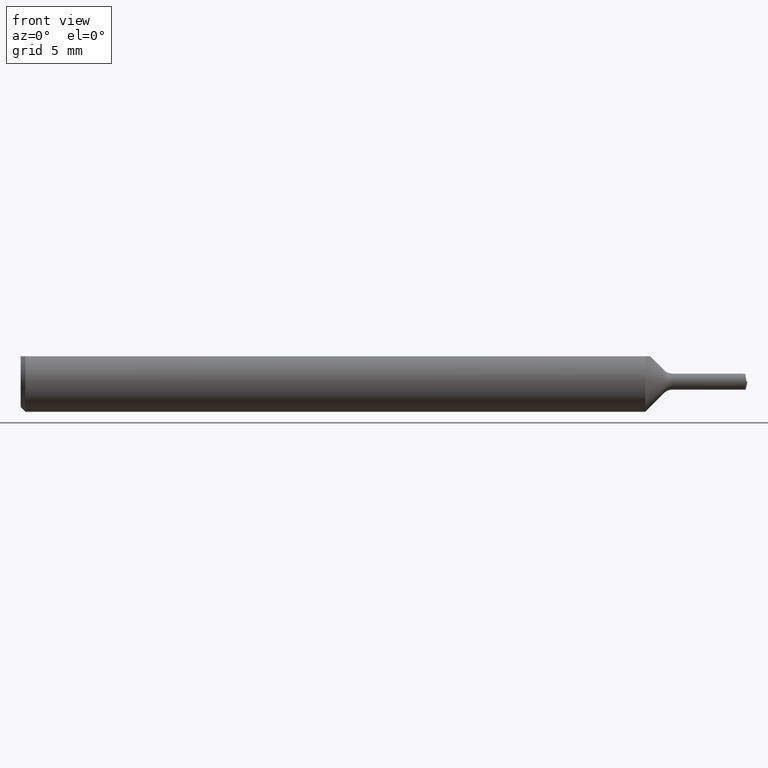
[diagram: clean part render]
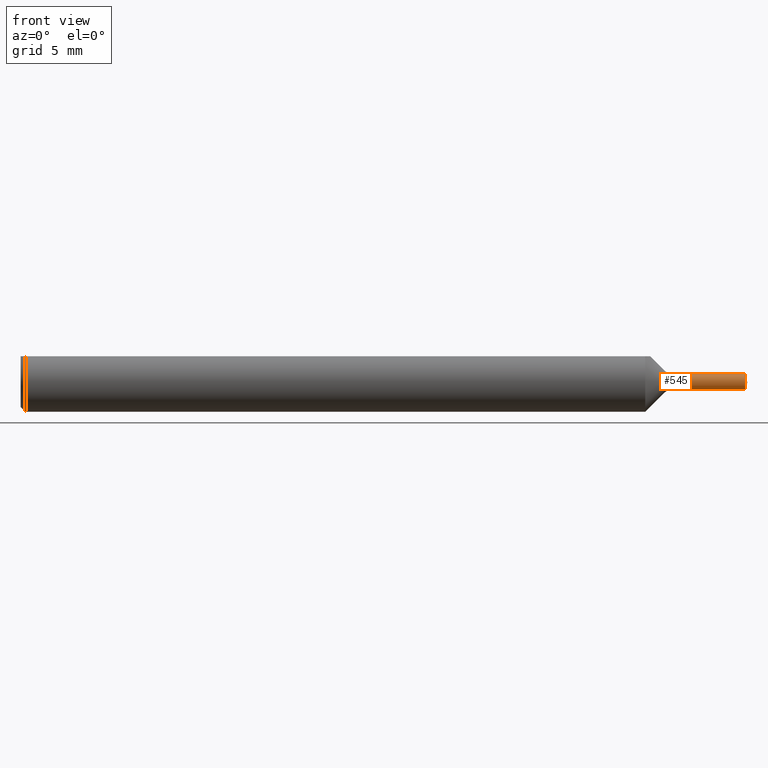
[diagram: same view with one face highlighted and labeled with its STEP entity id]
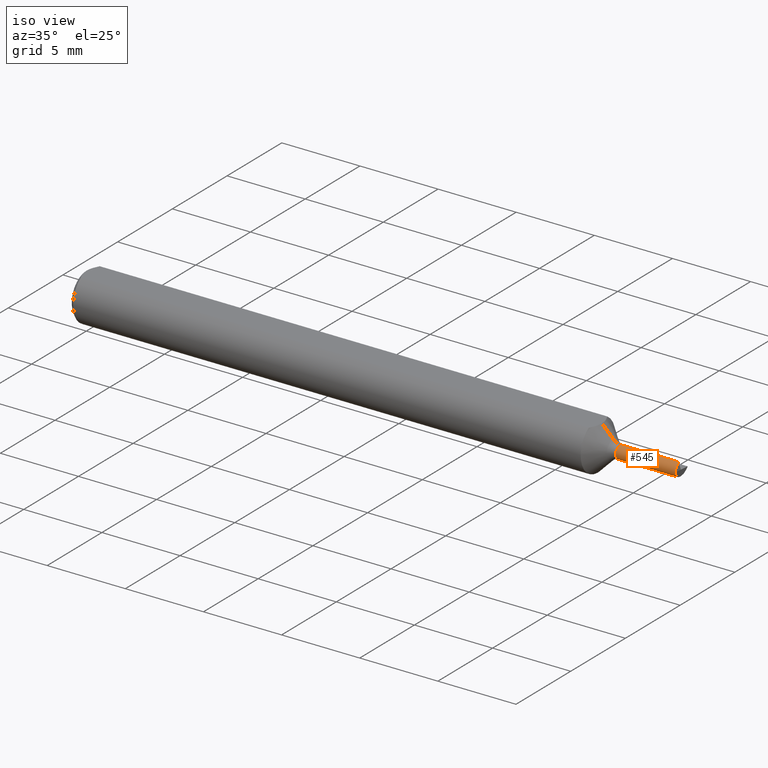
[diagram: same view with one face highlighted and labeled with its STEP entity id]
A machine part, front view. The second image highlights one B-rep face of the part: STEP entity #545.
A second angle (iso view) of the same face is appended — the face is thin or edge-on in the first view.
In plain terms, the highlighted cylindrical surface (edge-blend (fillet) strip) has radius 0.4191 mm, axis along (-1, -0, -0).
Its self-contained STEP definition (entity closure, byte-faithful):
#17 = EDGE_CURVE ( 'NONE', #347, #64, #575, .T. ) ;
#23 = VERTEX_POINT ( 'NONE', #115 ) ;
#32 = ORIENTED_EDGE ( 'NONE', *, *, #362, .T. ) ;
#33 = CARTESIAN_POINT ( 'NONE',  ( 1.488546459223992757, -0.001231426132704289489, 0.01650000000000007710 ) ) ;
#51 = DIRECTION ( 'NONE',  ( -1.000000000000000000, -0.000000000000000000, -0.000000000000000000 ) ) ;
#64 = VERTEX_POINT ( 'NONE', #328 ) ;
#94 =( BOUNDED_CURVE ( )  B_SPLINE_CURVE ( 3, ( #224, #658, #124, #337 ),
 .UNSPECIFIED., .F., .T. ) 
 B_SPLINE_CURVE_WITH_KNOTS ( ( 4, 4 ),
 ( 5.951514266577302870, 7.298880934359512018 ),
 .UNSPECIFIED. ) 
 CURVE ( )  GEOMETRIC_REPRESENTATION_ITEM ( )  RATIONAL_B_SPLINE_CURVE ( ( 1.000000000000000000, 0.8543527035284934623, 0.8543527035284934623, 1.000000000000000000 ) ) 
 REPRESENTATION_ITEM ( '' )  );
#98 = ORIENTED_EDGE ( 'NONE', *, *, #17, .T. ) ;
#108 = VERTEX_POINT ( 'NONE', #554 ) ;
#115 = CARTESIAN_POINT ( 'NONE',  ( 1.345355339059327360, 0.000000000000000000, 0.01650000000000016731 ) ) ;
#124 = CARTESIAN_POINT ( 'NONE',  ( 1.495542229423953762, -0.01649999999999999037, 0.008032463953595924550 ) ) ;
#129 = CARTESIAN_POINT ( 'NONE',  ( 1.485163143730661384, 0.000000000000000000, 0.01650000000000008404 ) ) ;
#143 = CYLINDRICAL_SURFACE ( 'NONE', #241, 0.01650000000000008404 ) ;
#154 = ORIENTED_EDGE ( 'NONE', *, *, #691, .F. ) ;
#162 = ORIENTED_EDGE ( 'NONE', *, *, #506, .F. ) ;
#165 = ORIENTED_EDGE ( 'NONE', *, *, #541, .T. ) ;
#168 = VECTOR ( 'NONE', #51, 39.37007874015748143 ) ;
#188 = CIRCLE ( 'NONE', #229, 0.01650000000000016731 ) ;
#219 = VERTEX_POINT ( 'NONE', #305 ) ;
#224 = CARTESIAN_POINT ( 'NONE',  ( 1.495529215183589722, -0.003655992920803017871, 0.01608986375837411983 ) ) ;
#229 = AXIS2_PLACEMENT_3D ( 'NONE', #566, #299, #239 ) ;
#239 = DIRECTION ( 'NONE',  ( 0.000000000000000000, 0.000000000000000000, 1.000000000000000000 ) ) ;
#241 = AXIS2_PLACEMENT_3D ( 'NONE', #457, #345, #502 ) ;
#261 = LINE ( 'NONE', #633, #424 ) ;
#271 = CARTESIAN_POINT ( 'NONE',  ( 1.485163143730661384, 0.000000000000000000, 0.01650000000000008404 ) ) ;
#284 = CARTESIAN_POINT ( 'NONE',  ( 1.495791212049516705, 2.020667218593142955E-18, -0.01650000000000008404 ) ) ;
#299 = DIRECTION ( 'NONE',  ( -1.000000000000000000, -0.000000000000000000, -0.000000000000000000 ) ) ;
#305 = CARTESIAN_POINT ( 'NONE',  ( 1.495529215183589722, -0.003655992920803017871, 0.01608986375837411983 ) ) ;
#311 = CARTESIAN_POINT ( 'NONE',  ( 0.000000000000000000, 0.000000000000000000, 0.01650000000000008404 ) ) ;
#327 = EDGE_CURVE ( 'NONE', #347, #108, #261, .T. ) ;
#328 = CARTESIAN_POINT ( 'NONE',  ( 1.496675430786014616, -0.01650000000000009098, 1.616661764732909449E-16 ) ) ;
#337 = CARTESIAN_POINT ( 'NONE',  ( 1.496675430786014616, -0.01650000000000009098, 1.616661764732909449E-16 ) ) ;
#345 = DIRECTION ( 'NONE',  ( -1.000000000000000000, -0.000000000000000000, -0.000000000000000000 ) ) ;
#347 = VERTEX_POINT ( 'NONE', #700 ) ;
#362 = EDGE_CURVE ( 'NONE', #477, #23, #582, .T. ) ;
#391 = CARTESIAN_POINT ( 'NONE',  ( 1.495311847845374853, -0.01650000000000018119, -0.009665476220843897959 ) ) ;
#399 = CARTESIAN_POINT ( 'NONE',  ( 1.495529215183589722, -0.003655992920803017871, 0.01608986375837411983 ) ) ;
#424 = VECTOR ( 'NONE', #639, 39.37007874015748143 ) ;
#457 = CARTESIAN_POINT ( 'NONE',  ( 0.000000000000000000, 0.000000000000000000, 0.000000000000000000 ) ) ;
#477 = VERTEX_POINT ( 'NONE', #271 ) ;
#502 = DIRECTION ( 'NONE',  ( 0.000000000000000000, 0.000000000000000000, 1.000000000000000000 ) ) ;
#506 = EDGE_CURVE ( 'NONE', #219, #64, #94, .T. ) ;
#541 = EDGE_CURVE ( 'NONE', #219, #477, #650, .T. ) ;
#545 = ADVANCED_FACE ( 'NONE', ( #669 ), #143, .T. ) ;
#554 = CARTESIAN_POINT ( 'NONE',  ( 1.345355339059327360, 2.020667218593153355E-18, -0.01650000000000016731 ) ) ;
#566 = CARTESIAN_POINT ( 'NONE',  ( 1.345355339059327360, 0.000000000000000000, 0.000000000000000000 ) ) ;
#575 =( BOUNDED_CURVE ( )  B_SPLINE_CURVE ( 3, ( #284, #662, #391, #605 ),
 .UNSPECIFIED., .F., .T. ) 
 B_SPLINE_CURVE_WITH_KNOTS ( ( 4, 4 ),
 ( 5.728084607564589703, 7.298880934359496919 ),
 .UNSPECIFIED. ) 
 CURVE ( )  GEOMETRIC_REPRESENTATION_ITEM ( )  RATIONAL_B_SPLINE_CURVE ( ( 1.000000000000000000, 0.8047378541243626060, 0.8047378541243626060, 1.000000000000000000 ) ) 
 REPRESENTATION_ITEM ( '' )  );
#582 = LINE ( 'NONE', #311, #168 ) ;
#602 = EDGE_LOOP ( 'NONE', ( #635, #98, #162, #165, #32, #154 ) ) ;
#605 = CARTESIAN_POINT ( 'NONE',  ( 1.496675430786014616, -0.01650000000000009098, 1.616661764732909449E-16 ) ) ;
#633 = CARTESIAN_POINT ( 'NONE',  ( 0.000000000000000000, 2.020667218593142955E-18, -0.01650000000000008404 ) ) ;
#635 = ORIENTED_EDGE ( 'NONE', *, *, #327, .F. ) ;
#639 = DIRECTION ( 'NONE',  ( -1.000000000000000000, -0.000000000000000000, -0.000000000000000000 ) ) ;
#650 =( BOUNDED_CURVE ( )  B_SPLINE_CURVE ( 3, ( #399, #684, #33, #129 ),
 .UNSPECIFIED., .F., .T. ) 
 B_SPLINE_CURVE_WITH_KNOTS ( ( 4, 4 ),
 ( 4.766733112033625375, 4.990162771046302126 ),
 .UNSPECIFIED. ) 
 CURVE ( )  GEOMETRIC_REPRESENTATION_ITEM ( )  RATIONAL_B_SPLINE_CURVE ( ( 1.000000000000000000, 0.9958442570308264630, 0.9958442570308264630, 1.000000000000000000 ) ) 
 REPRESENTATION_ITEM ( '' )  );
#658 = CARTESIAN_POINT ( 'NONE',  ( 1.495095023175414095, -0.01148879599094882430, 0.01431006791892252585 ) ) ;
#662 = CARTESIAN_POINT ( 'NONE',  ( 1.494945592452613159, -0.009665476220844040206, -0.01650000000000009098 ) ) ;
#669 = FACE_OUTER_BOUND ( 'NONE', #602, .T. ) ;
#684 = CARTESIAN_POINT ( 'NONE',  ( 1.492016235874890295, -0.002455176029668970725, 0.01636271740829281160 ) ) ;
#691 = EDGE_CURVE ( 'NONE', #108, #23, #188, .T. ) ;
#700 = CARTESIAN_POINT ( 'NONE',  ( 1.495791212049516705, 2.020667218593142955E-18, -0.01650000000000008404 ) ) ;